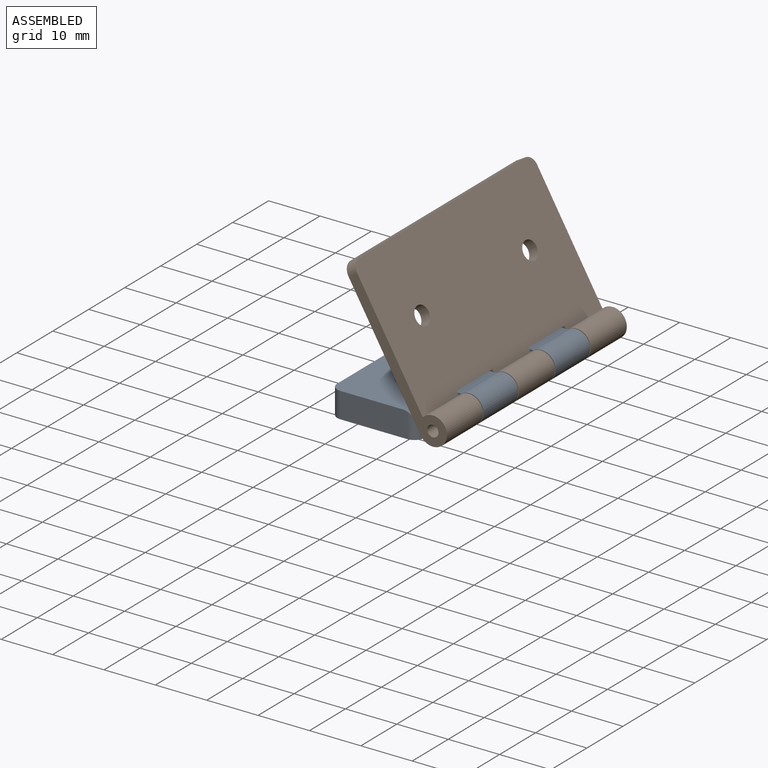
[diagram: assembled view]
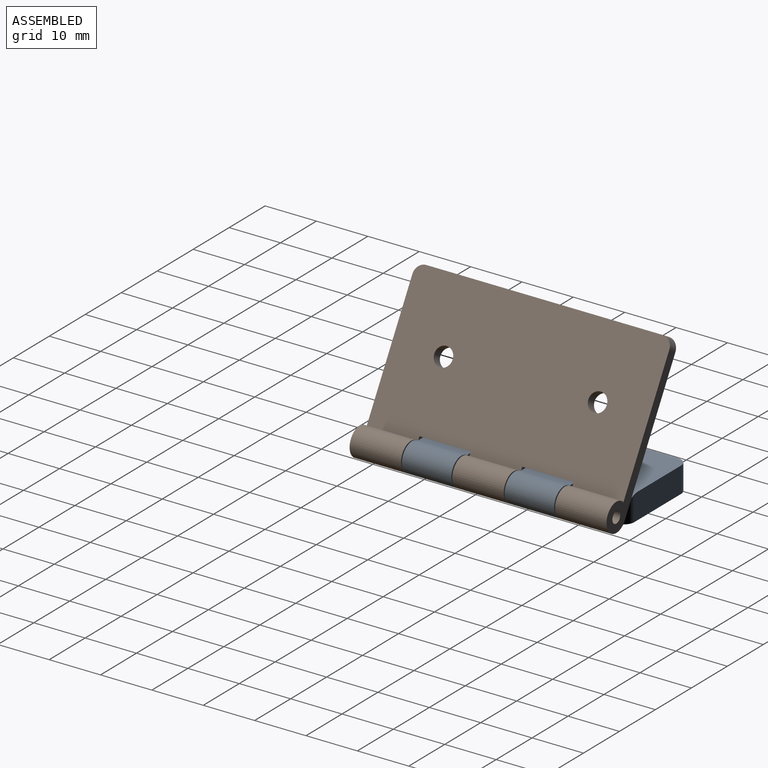
[diagram: assembled view, second angle]
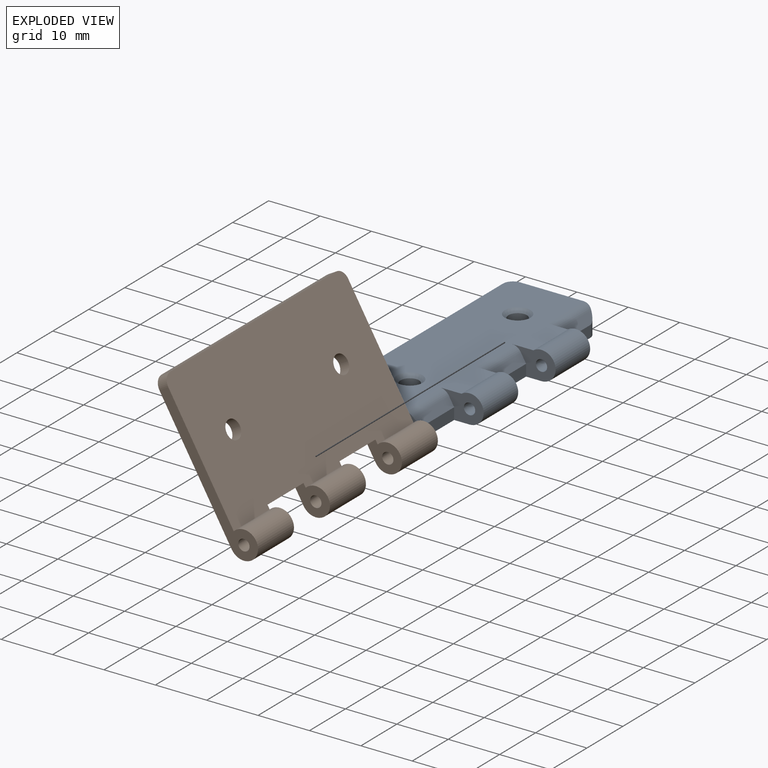
[diagram: exploded view]
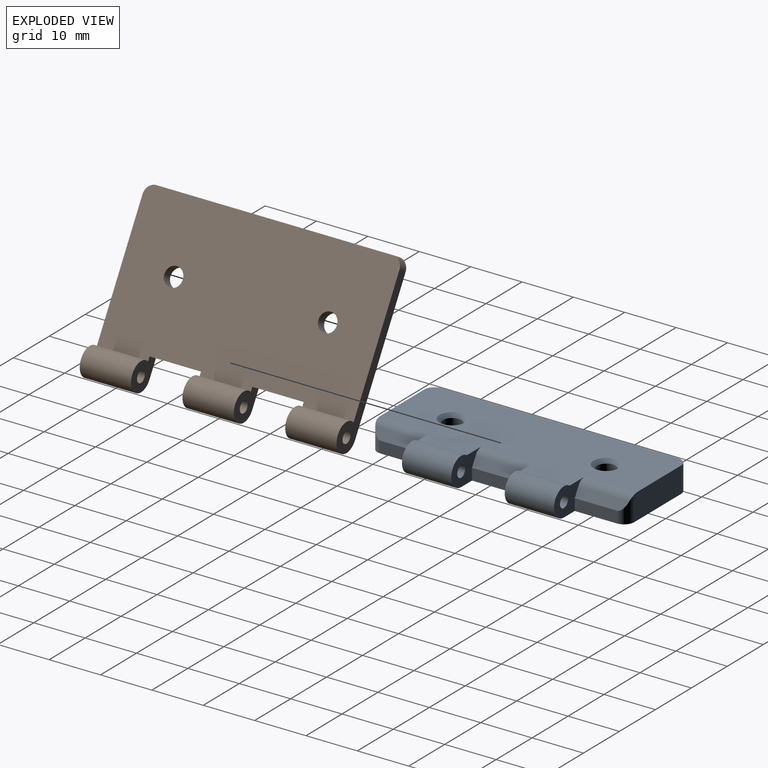
[diagram: exploded view, second angle]
ASSEMBLY  parts=2 mates=2
PART A: 30 faces, bbox 22.8x50x5.5 mm
  f0: plane 8.2x2.25mm, normal (1,0,0), area 18.5mm2, adj f5,f15,f22,f23
  f1: plane 10.4x2.25mm, normal (1,0,0), area 23.4mm2, adj f5,f10,f11,f21
  f2: plane 50x18.42mm, normal (0,0,1), area 751.8mm2, adj f3,f6,f7,f8,f9,f10,f11,f13
  f3: plane 13x5mm, normal (0,-1,0), area 65mm2, adj f2,f5,f26,f27,f29
  f4: cylinder r=1.8mm len=4.3mm, axis (0,0,1), area 48.6mm2, adj f5,f19
  f5: plane 50x20mm, normal (0,0,-1), area 883.8mm2, adj f0,f1,f3,f4,f6,f7,f8,f9
  f6: cylinder r=2.75mm len=9.6mm, axis (0,1,0), area 99.1mm2, adj f2,f5,f10,f15
  f7: plane 13x5mm, normal (0,1,0), area 65mm2, adj f2,f5,f23,f24,f28
  f8: cylinder r=2.75mm len=9.6mm, axis (0,1,0), area 99.1mm2, adj f2,f5,f11,f13
  f9: plane 46x5mm, normal (-1,0,0), area 230mm2, adj f2,f5,f28,f29
  f10: plane 8.49x5.5mm, normal (0,-1,0), area 26mm2, adj f1,f2,f5,f6,f16,f21,f25
  f11: plane 8.49x5.5mm, normal (0,1,0), area 26mm2, adj f1,f2,f5,f8,f12,f21,f25
  f12: cylinder r=1.1mm len=9.6mm, axis (0,1,0), area 66.4mm2, adj f11,f13
  f13: plane 8.49x5.5mm, normal (0,-1,0), area 26mm2, adj f2,f5,f8,f12,f14,f20,f27
  f14: plane 8.2x2.25mm, normal (1,0,0), area 18.4mm2, adj f5,f13,f20,f26
  f15: plane 8.49x5.5mm, normal (0,1,0), area 26mm2, adj f0,f2,f5,f6,f16,f22,f24
  f16: cylinder r=1.1mm len=9.6mm, axis (0,1,0), area 66.4mm2, adj f10,f15
  f17: cylinder r=1.8mm len=4.3mm, axis (0,0,1), area 48.6mm2, adj f5,f18
  f18: cone r=0mm half-angle=45deg, axis (0,0,1), area 13.4mm2, adj f2,f17
  f19: cone r=3mm half-angle=45deg, axis (0,0,1), area 13.4mm2, adj f2,f4
  f20: plane 9.94x1.75mm, normal (0.87,0,0.5), area 19.1mm2, adj f13,f14,f26,f27
  f21: plane 10.4x1.75mm, normal (0.87,0,0.5), area 21mm2, adj f1,f10,f11,f25
  f22: plane 9.94x1.75mm, normal (0.87,0,0.5), area 19.1mm2, adj f0,f15,f23,f24
  f23: cylinder r=2mm len=4.86mm, axis (0,0,1), area 10.7mm2, adj f0,f5,f7,f22,f24
  f24: cylinder r=2mm len=10.2mm, axis (0,-1,0), area 21.2mm2, adj f2,f7,f15,f22,f23
  f25: cylinder r=2mm len=10.4mm, axis (0,-1,0), area 21.8mm2, adj f2,f10,f11,f21
  f26: cylinder r=2mm len=4.86mm, axis (0,0,-1), area 10.7mm2, adj f3,f5,f14,f20,f27
  f27: cylinder r=2mm len=10.2mm, axis (0,1,0), area 21.2mm2, adj f2,f3,f13,f20,f26
  f28: cylinder r=2mm len=5mm, axis (0,0,-1), area 15.7mm2, adj f2,f5,f7,f9
  f29: cylinder r=2mm len=5mm, axis (0,0,1), area 15.7mm2, adj f2,f3,f5,f9
PART B: 21 faces, bbox 32.8x50x5.5 mm
  f0: plane 50x30mm, normal (0,0,1), area 1384.8mm2, adj f1,f2,f5,f7,f8,f9,f10,f11
  f1: cylinder r=2.75mm len=10mm, axis (0,1,0), area 137.2mm2, adj f0,f3,f9,f13
  f2: cylinder r=2.75mm len=10mm, axis (0,1,0), area 137.2mm2, adj f0,f3,f11,f14
  f3: plane 50x27.35mm, normal (0,0,-1), area 1328.6mm2, adj f1,f2,f5,f7,f8,f9,f10,f11
  f4: cylinder r=1.1mm len=10mm, axis (0,1,0), area 69.1mm2, adj f9,f13
  f5: cylinder r=2.75mm len=10mm, axis (0,1,0), area 137.2mm2, adj f0,f3,f8,f10
  f6: cylinder r=1.1mm len=10mm, axis (0,1,0), area 69.1mm2, adj f8,f10
  f7: plane 46x2mm, normal (1,0,0), area 92mm2, adj f0,f3,f19,f20
  f8: plane 30.75x5.5mm, normal (0,-1,0), area 72.1mm2, adj f0,f3,f5,f6,f20
  f9: plane 30.75x5.5mm, normal (0,1,0), area 72.1mm2, adj f0,f1,f3,f4,f19
  f10: plane 7.4x5.5mm, normal (0,1,0), area 24.2mm2, adj f0,f3,f5,f6,f18
  f11: plane 7.4x5.5mm, normal (0,-1,0), area 24.2mm2, adj f0,f2,f3,f12,f18
  f12: cylinder r=1.1mm len=10mm, axis (0,1,0), area 69.1mm2, adj f11,f14
  f13: plane 7.4x5.5mm, normal (0,-1,0), area 24.2mm2, adj f0,f1,f3,f4,f17
  f14: plane 7.4x5.5mm, normal (0,1,0), area 24.2mm2, adj f0,f2,f3,f12,f17
  f15: cylinder r=1.8mm len=3.6mm, axis (0,0,1), area 22.6mm2, adj f0,f3
  f16: cylinder r=1.8mm len=3.6mm, axis (0,0,1), area 22.6mm2, adj f0,f3
  f17: plane 10x2mm, normal (-0.87,0,0.5), area 23.1mm2, adj f0,f3,f13,f14
  f18: plane 10x2mm, normal (-0.87,0,0.5), area 23.1mm2, adj f0,f3,f10,f11
  f19: cylinder r=2mm len=2mm, axis (0,0,1), area 6.3mm2, adj f0,f3,f7,f9
  f20: cylinder r=2mm len=2mm, axis (0,0,-1), area 6.3mm2, adj f0,f3,f7,f8
PLACE A t=(21,0,2.75)mm
PLACE B rot(axis=(0,-1,0),120.1deg) t=(19.51,0,0.16)mm
MATE planar A.f3 <-> B.f8  axis (0,-1,0) through (6.5,-50,2.5)mm
MATE cylindrical A.f12 <-> B.f4  axis (0,1,0) through (18,-19.8,2.75)mm
